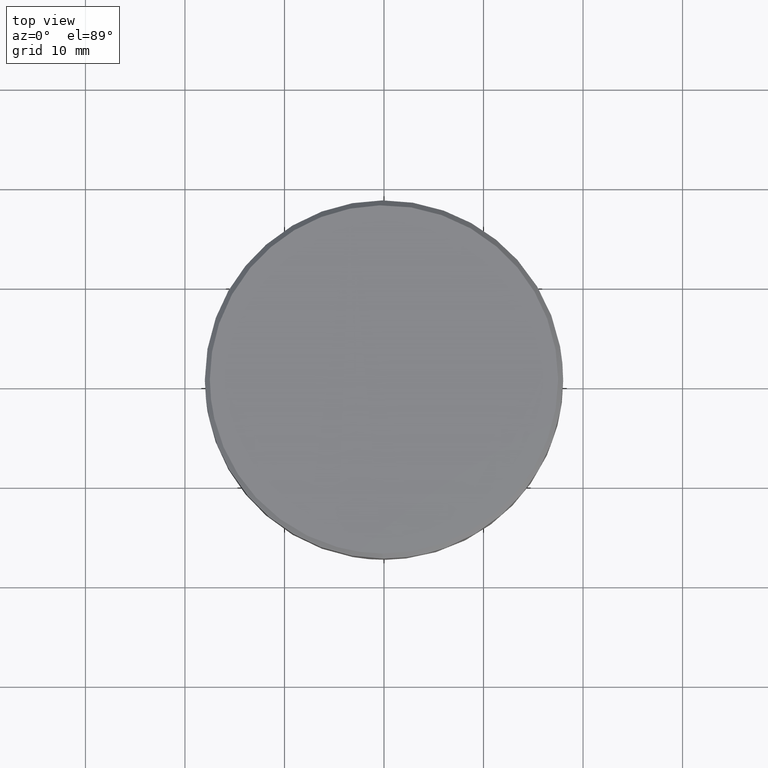
[diagram: clean part render]
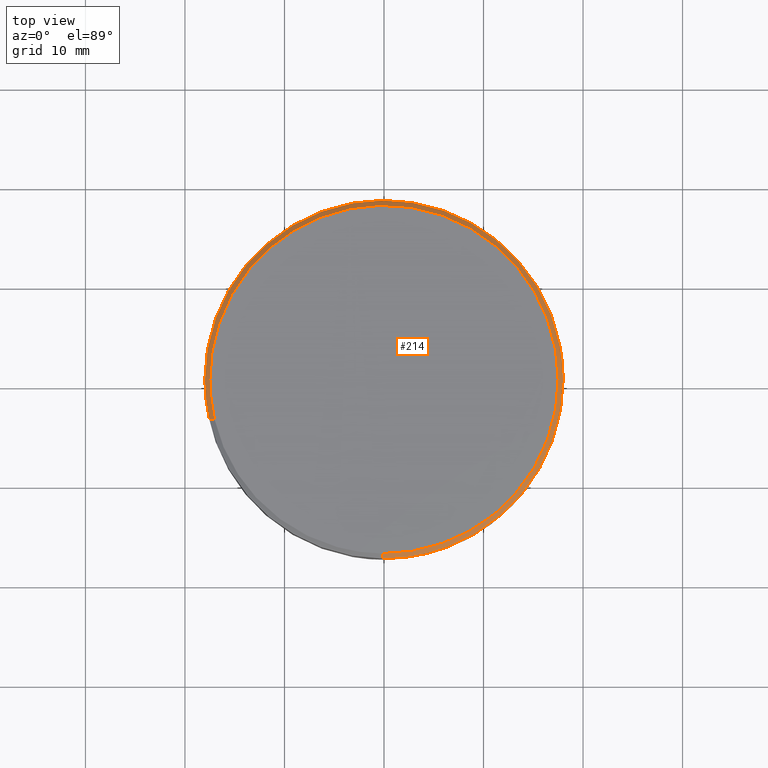
[diagram: same view with one face highlighted and labeled with its STEP entity id]
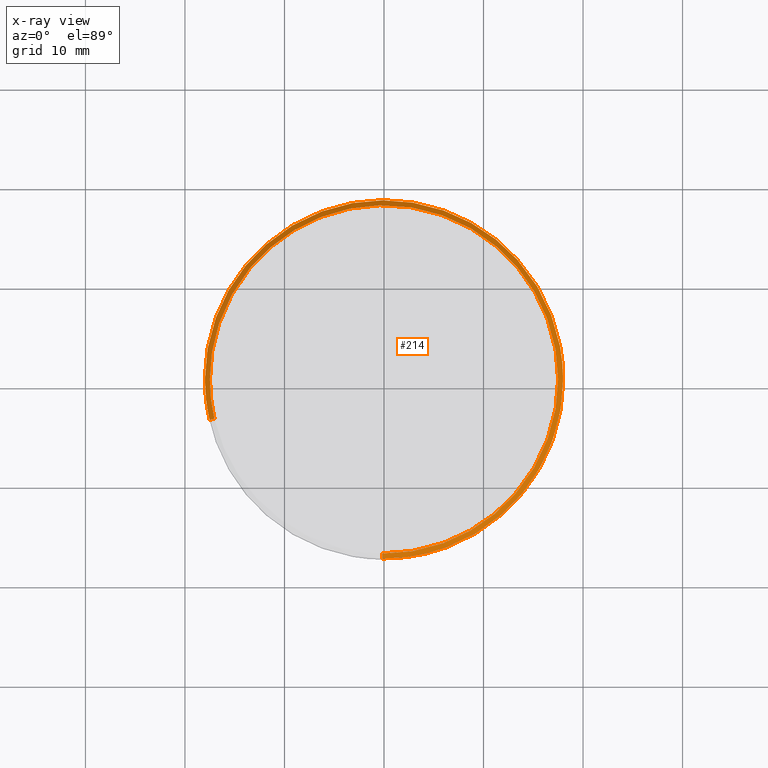
[diagram: x-ray of the same camera — body ghosted, the highlighted face saturated]
A machine part, top view. The second image highlights one B-rep face of the part: STEP entity #214.
The next image is the same camera in x-ray: the body ghosted, the highlighted face saturated — about 0% of this face is hidden behind the body in this view.
In plain terms, the highlighted face is a freeform B-spline surface patch.
Its self-contained STEP definition (entity closure, byte-faithful):
#44=CARTESIAN_POINT('',(-17.036639953710658,-3.945320688819989,23.012499999999999));
#45=CARTESIAN_POINT('',(-17.504948331500820,-1.923076656205386,23.012500000000003));
#46=CARTESIAN_POINT('',(-17.486834129584739,0.152605289527814,23.012499999999999));
#47=CARTESIAN_POINT('',(-17.334228840056934,17.639439419112552,23.012500000000006));
#48=CARTESIAN_POINT('',(0.152605289527814,17.486834129584739,23.012499999999999));
#49=CARTESIAN_POINT('',(17.639439419112552,17.334228840056934,23.012500000000006));
#50=CARTESIAN_POINT('',(17.486834129584739,-0.152605289527814,23.012499999999999));
#51=CARTESIAN_POINT('',(17.334228840056934,-17.639439419112552,23.012500000000006));
#52=CARTESIAN_POINT('',(-0.152605289527814,-17.486834129584739,23.012499999999999));
#53=CARTESIAN_POINT('',(-17.548408927302248,-4.063835415015588,22.487187499999994));
#54=CARTESIAN_POINT('',(-18.030784967405925,-1.980844559334066,22.487187499999990));
#55=CARTESIAN_POINT('',(-18.012126627294339,0.157189447706803,22.487187500000001));
#56=CARTESIAN_POINT('',(-17.854937179587541,18.169316075001138,22.487187500000005));
#57=CARTESIAN_POINT('',(0.157189447706803,18.012126627294339,22.487187500000001));
#58=CARTESIAN_POINT('',(18.169316075001138,17.854937179587541,22.487187500000005));
#59=CARTESIAN_POINT('',(18.012126627294339,-0.157189447706803,22.487187500000001));
#60=CARTESIAN_POINT('',(17.854937179587541,-18.169316075001138,22.487187500000005));
#61=CARTESIAN_POINT('',(-0.157189447706803,-18.012126627294339,22.487187500000001));
#69=(BOUNDED_SURFACE()B_SPLINE_SURFACE(2,1,((#44,#53),(#45,#54),(#46,#55),(#47,#56),(#48,#57),(#49,#58),(#50,#59),(#51,#60),(#52,#61)),.UNSPECIFIED.,.F.,.F.,.U.)B_SPLINE_SURFACE_WITH_KNOTS((3,2,2,2,3),(2,2),(0.0,4.775136789749517,34.619741725683980,64.464346661618450,94.308951597552920),(0.0,1.0),.UNSPECIFIED.)GEOMETRIC_REPRESENTATION_ITEM()RATIONAL_B_SPLINE_SURFACE(((0.921270302782944,0.921270302782944),(0.953137084989848,0.953137084989848),(1.0,1.0),(0.707106781186548,0.707106781186548),(1.0,1.0),(0.707106781186548,0.707106781186548),(1.0,1.0),(0.707106781186548,0.707106781186548),(1.0,1.0)))REPRESENTATION_ITEM('')SURFACE());
#70=CARTESIAN_POINT('',(-17.535926757209861,-4.060944811979751,22.499999999995168));
#71=VERTEX_POINT('',#70);
#72=CARTESIAN_POINT('',(-18.0,0.0,22.500000000000000));
#73=VERTEX_POINT('',#72);
#74=CARTESIAN_POINT('',(-17.535926757209864,-4.060944811979750,22.499999999995158));
#75=CARTESIAN_POINT('',(-17.999999999999996,-2.056988892277946,22.500000000000000));
#76=CARTESIAN_POINT('',(-18.0,0.0,22.500000000000000));
#84=(BOUNDED_CURVE()B_SPLINE_CURVE(2,(#74,#75,#76),.UNSPECIFIED.,.F.,.U.)B_SPLINE_CURVE_WITH_KNOTS((3,3),(0.961422971783845,1.0),.UNSPECIFIED.)CURVE()GEOMETRIC_REPRESENTATION_ITEM()RATIONAL_B_SPLINE_CURVE((0.923556557441548,0.954804200134052,1.0))REPRESENTATION_ITEM(''));
#85=EDGE_CURVE('',#71,#73,#84,.T.);
#86=ORIENTED_EDGE('',*,*,#85,.F.);
#87=CARTESIAN_POINT('',(-17.048817680623930,-3.948140789396533,22.999999999998550));
#88=VERTEX_POINT('',#87);
#89=CARTESIAN_POINT('',(-17.048817680623930,-3.948140789396533,22.999999999998550));
#90=CARTESIAN_POINT('',(-17.535926757209861,-4.060944811979751,22.499999999995168));
#91=QUASI_UNIFORM_CURVE('',1,(#89,#90),.UNSPECIFIED.,.F.,.U.);
#92=EDGE_CURVE('',#88,#71,#91,.T.);
#93=ORIENTED_EDGE('',*,*,#92,.F.);
#94=CARTESIAN_POINT('',(-17.500000000000000,0.0,23.0));
#95=VERTEX_POINT('',#94);
#96=CARTESIAN_POINT('',(-17.500000000000000,0.0,23.0));
#97=CARTESIAN_POINT('',(-17.500000000000000,-1.999850311908260,23.000000000000004));
#98=CARTESIAN_POINT('',(-17.048817680623930,-3.948140789396533,22.999999999998547));
#106=(BOUNDED_CURVE()B_SPLINE_CURVE(2,(#96,#97,#98),.UNSPECIFIED.,.F.,.U.)B_SPLINE_CURVE_WITH_KNOTS((3,3),(0.500000000000000,0.538577028215627),.UNSPECIFIED.)CURVE()GEOMETRIC_REPRESENTATION_ITEM()RATIONAL_B_SPLINE_CURVE((1.0,0.954804200134670,0.923556557442402))REPRESENTATION_ITEM(''));
#107=EDGE_CURVE('',#95,#88,#106,.T.);
#108=ORIENTED_EDGE('',*,*,#107,.F.);
#109=CARTESIAN_POINT('',(17.500000000000000,0.0,23.0));
#110=VERTEX_POINT('',#109);
#111=CARTESIAN_POINT('',(17.500000000000000,0.0,23.0));
#112=CARTESIAN_POINT('',(17.499999999999996,17.499999999999996,22.999999999999993));
#113=CARTESIAN_POINT('',(0.0,17.500000000000000,23.0));
#114=CARTESIAN_POINT('',(-17.499999999999996,17.499999999999996,22.999999999999993));
#115=CARTESIAN_POINT('',(-17.500000000000000,0.0,23.0));
#123=(BOUNDED_CURVE()B_SPLINE_CURVE(2,(#111,#112,#113,#114,#115),.UNSPECIFIED.,.F.,.U.)B_SPLINE_CURVE_WITH_KNOTS((3,2,3),(0.0,0.250000000000000,0.500000000000000),.UNSPECIFIED.)CURVE()GEOMETRIC_REPRESENTATION_ITEM()RATIONAL_B_SPLINE_CURVE((1.0,0.707106781186548,1.0,0.707106781186548,1.0))REPRESENTATION_ITEM(''));
#124=EDGE_CURVE('',#110,#95,#123,.T.);
#125=ORIENTED_EDGE('',*,*,#124,.F.);
#126=CARTESIAN_POINT('',(-0.152714371277731,-17.499333653630160,22.999999999992369));
#127=VERTEX_POINT('',#126);
#128=CARTESIAN_POINT('',(-0.152714371277731,-17.499333653630163,22.999999999992376));
#129=CARTESIAN_POINT('',(-0.076358639418401,-17.500000000000004,23.000000000000007));
#130=CARTESIAN_POINT('',(0.0,-17.500000000000000,23.0));
#131=CARTESIAN_POINT('',(17.499999999999996,-17.499999999999996,22.999999999999993));
#132=CARTESIAN_POINT('',(17.500000000000000,0.0,23.0));
#140=(BOUNDED_CURVE()B_SPLINE_CURVE(2,(#128,#129,#130,#131,#132),.UNSPECIFIED.,.F.,.U.)B_SPLINE_CURVE_WITH_KNOTS((3,2,3),(0.748460105663883,0.750000000000000,1.0),.UNSPECIFIED.)CURVE()GEOMETRIC_REPRESENTATION_ITEM()RATIONAL_B_SPLINE_CURVE((0.996414028097791,0.998195901565048,1.0,0.707106781186548,1.0))REPRESENTATION_ITEM(''));
#141=EDGE_CURVE('',#127,#110,#140,.T.);
#142=ORIENTED_EDGE('',*,*,#141,.F.);
#143=CARTESIAN_POINT('',(-0.157077639032708,-17.999314615162959,22.499999999991580));
#144=VERTEX_POINT('',#143);
#145=CARTESIAN_POINT('',(-0.152714371277731,-17.499333653630160,22.999999999992369));
#146=CARTESIAN_POINT('',(-0.157077639032708,-17.999314615162959,22.499999999991580));
#147=QUASI_UNIFORM_CURVE('',1,(#145,#146),.UNSPECIFIED.,.F.,.U.);
#148=EDGE_CURVE('',#127,#144,#147,.T.);
#149=ORIENTED_EDGE('',*,*,#148,.T.);
#150=CARTESIAN_POINT('',(2.234293266750887,-17.860793196217060,22.499999999999940));
#151=VERTEX_POINT('',#150);
#152=CARTESIAN_POINT('',(2.234293266750888,-17.860793196217056,22.499999999999936));
#153=CARTESIAN_POINT('',(1.121483247218361,-18.000000000000004,22.500000000000004));
#154=CARTESIAN_POINT('',(0.0,-18.0,22.500000000000000));
#155=CARTESIAN_POINT('',(-0.078540314834508,-18.0,22.500000000000000));
#156=CARTESIAN_POINT('',(-0.157077639032708,-17.999314615162966,22.499999999991577));
#164=(BOUNDED_CURVE()B_SPLINE_CURVE(2,(#152,#153,#154,#155,#156),.UNSPECIFIED.,.F.,.U.)B_SPLINE_CURVE_WITH_KNOTS((3,2,3),(0.728526172728731,0.750000000000000,0.751539894336198),.UNSPECIFIED.)CURVE()GEOMETRIC_REPRESENTATION_ITEM()RATIONAL_B_SPLINE_CURVE((0.954005627634095,0.974841846441095,1.0,0.998195901564953,0.996414028097603))REPRESENTATION_ITEM(''));
#165=EDGE_CURVE('',#151,#144,#164,.T.);
#166=ORIENTED_EDGE('',*,*,#165,.F.);
#167=CARTESIAN_POINT('',(18.0,0.0,22.500000000000000));
#168=VERTEX_POINT('',#167);
#169=CARTESIAN_POINT('',(18.0,0.0,22.500000000000000));
#170=CARTESIAN_POINT('',(18.000000000000004,-15.888584458753520,22.499999999999996));
#171=CARTESIAN_POINT('',(2.234293266750888,-17.860793196217056,22.499999999999936));
#179=(BOUNDED_CURVE()B_SPLINE_CURVE(2,(#169,#170,#171),.UNSPECIFIED.,.F.,.U.)B_SPLINE_CURVE_WITH_KNOTS((3,3),(0.500000000000000,0.728526172728731),.UNSPECIFIED.)CURVE()GEOMETRIC_REPRESENTATION_ITEM()RATIONAL_B_SPLINE_CURVE((1.0,0.732264934745452,0.954005627634095))REPRESENTATION_ITEM(''));
#180=EDGE_CURVE('',#168,#151,#179,.T.);
#181=ORIENTED_EDGE('',*,*,#180,.F.);
#182=CARTESIAN_POINT('',(-0.157060872765595,17.999314761455910,22.499999999999972));
#183=VERTEX_POINT('',#182);
#184=CARTESIAN_POINT('',(-0.157060872765595,17.999314761455917,22.499999999999968));
#185=CARTESIAN_POINT('',(-0.078531931191321,18.000000000000004,22.499999999999996));
#186=CARTESIAN_POINT('',(0.0,18.0,22.500000000000000));
#187=CARTESIAN_POINT('',(18.000000000000007,18.000000000000007,22.500000000000004));
#188=CARTESIAN_POINT('',(18.0,0.0,22.500000000000000));
#196=(BOUNDED_CURVE()B_SPLINE_CURVE(2,(#184,#185,#186,#187,#188),.UNSPECIFIED.,.F.,.U.)B_SPLINE_CURVE_WITH_KNOTS((3,2,3),(0.248460269740511,0.250000000000000,0.500000000000000),.UNSPECIFIED.)CURVE()GEOMETRIC_REPRESENTATION_ITEM()RATIONAL_B_SPLINE_CURVE((0.996414407817330,0.998196093792775,1.0,0.707106781186547,1.0))REPRESENTATION_ITEM(''));
#197=EDGE_CURVE('',#183,#168,#196,.T.);
#198=ORIENTED_EDGE('',*,*,#197,.F.);
#199=CARTESIAN_POINT('',(-18.0,0.0,22.500000000000000));
#200=CARTESIAN_POINT('',(-18.000000000000004,17.843618412510050,22.500000000000004));
#201=CARTESIAN_POINT('',(-0.157060872765595,17.999314761455917,22.499999999999968));
#209=(BOUNDED_CURVE()B_SPLINE_CURVE(2,(#199,#200,#201),.UNSPECIFIED.,.F.,.U.)B_SPLINE_CURVE_WITH_KNOTS((3,3),(0.0,0.248460269740511),.UNSPECIFIED.)CURVE()GEOMETRIC_REPRESENTATION_ITEM()RATIONAL_B_SPLINE_CURVE((1.0,0.708910687393773,0.996414407817330))REPRESENTATION_ITEM(''));
#210=EDGE_CURVE('',#73,#183,#209,.T.);
#211=ORIENTED_EDGE('',*,*,#210,.F.);
#212=EDGE_LOOP('',(#86,#93,#108,#125,#142,#149,#166,#181,#198,#211));
#213=FACE_OUTER_BOUND('',#212,.T.);
#214=ADVANCED_FACE('',(#213),#69,.T.);